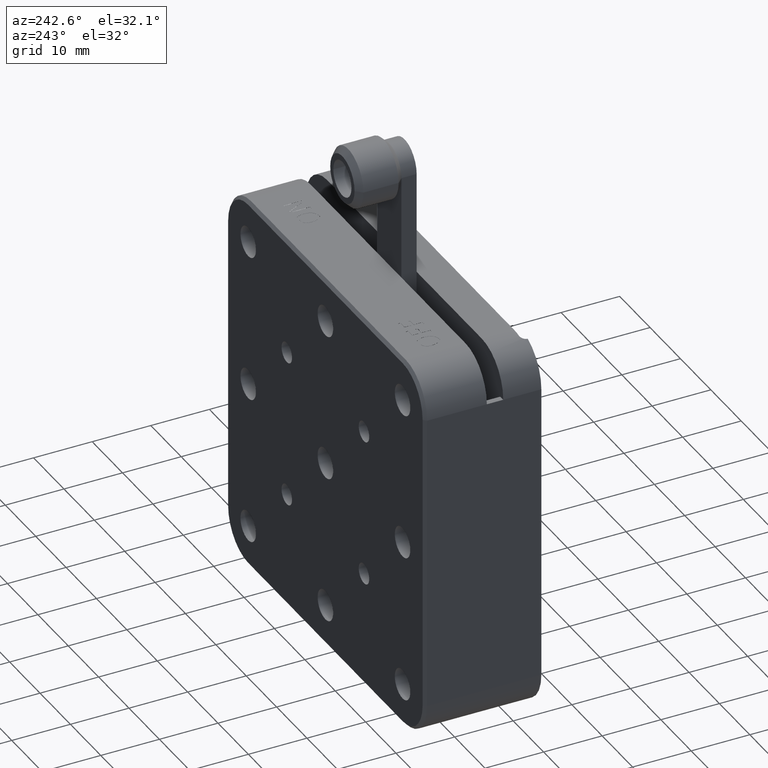
[diagram: clean part render]
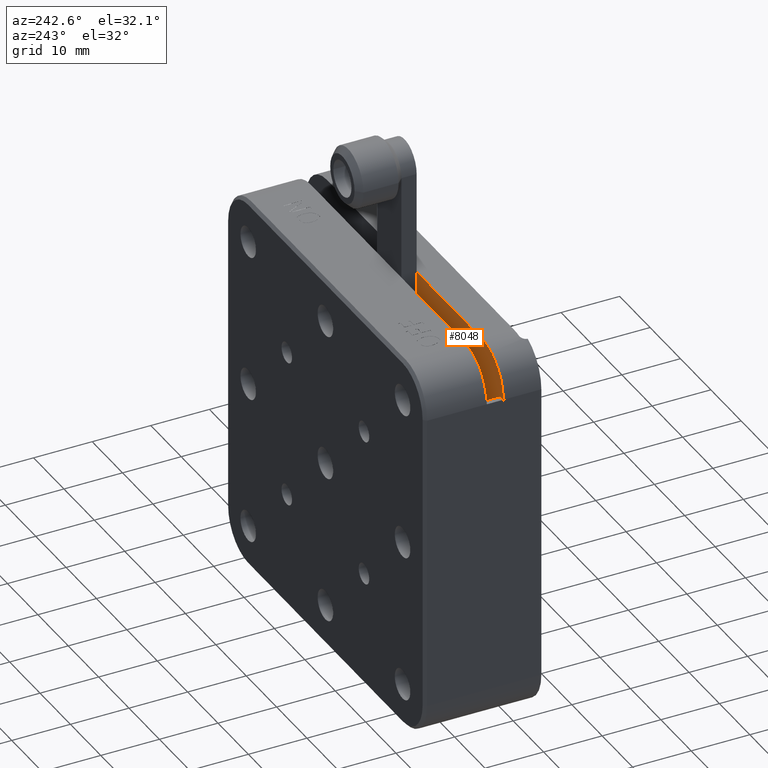
[diagram: same view with one face highlighted and labeled with its STEP entity id]
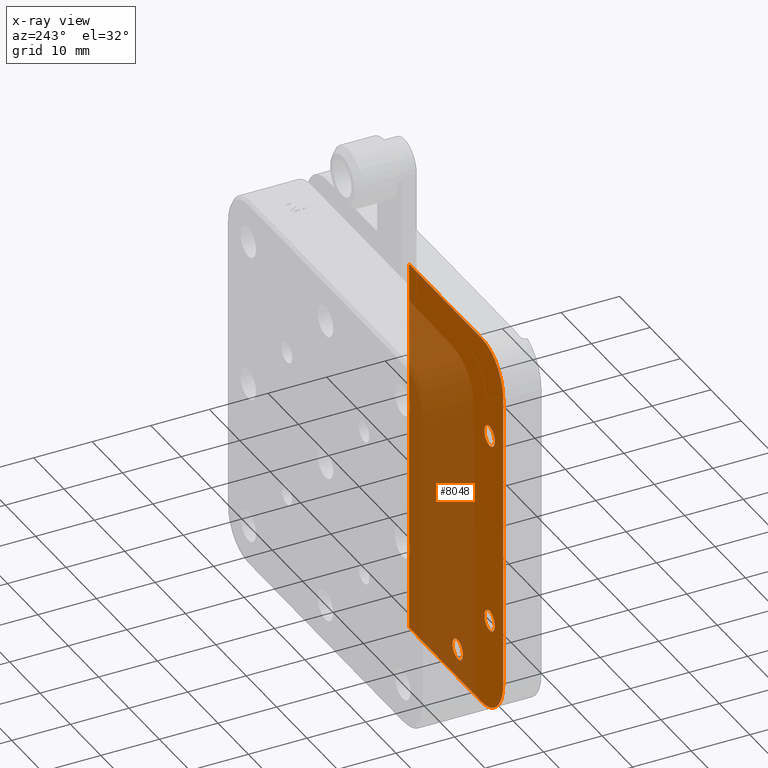
[diagram: x-ray of the same camera — body ghosted, the highlighted face saturated]
A machine part, auxiliary view. The second image highlights one B-rep face of the part: STEP entity #8048.
The next image is the same camera in x-ray: the body ghosted, the highlighted face saturated — about 63% of this face is hidden behind the body in this view.
In plain terms, the highlighted planar face has unit normal (-0, 1, -0).
Its self-contained STEP definition (entity closure, byte-faithful):
#56 = CARTESIAN_POINT ( 'NONE',  ( -28.00000000000001800, 3.000000000000008900, 14.79999999999997200 ) ) ;
#78 = ORIENTED_EDGE ( 'NONE', *, *, #2910, .T. ) ;
#96 = FACE_BOUND ( 'NONE', #3493, .T. ) ;
#160 = VERTEX_POINT ( 'NONE', #325 ) ;
#180 = EDGE_CURVE ( 'NONE', #5347, #6297, #6179, .T. ) ;
#265 = AXIS2_PLACEMENT_3D ( 'NONE', #3376, #4025, #4656 ) ;
#325 = CARTESIAN_POINT ( 'NONE',  ( -25.50000000000002100, 3.000000000000007100, 32.49999999999998600 ) ) ;
#356 = LINE ( 'NONE', #7627, #2393 ) ;
#392 = CIRCLE ( 'NONE', #265, 1.700000000000000200 ) ;
#411 = CARTESIAN_POINT ( 'NONE',  ( -28.00000000000001800, 3.000000000000009800, -16.49999999999997500 ) ) ;
#445 = VERTEX_POINT ( 'NONE', #56 ) ;
#482 = AXIS2_PLACEMENT_3D ( 'NONE', #6536, #3401, #7141 ) ;
#487 = VERTEX_POINT ( 'NONE', #6469 ) ;
#679 = DIRECTION ( 'NONE',  ( 0.0000000000000000000, 0.0000000000000000000, 1.000000000000000000 ) ) ;
#680 = DIRECTION ( 'NONE',  ( 1.734723475976804800E-018, -1.000000000000000000, -7.589415207398521400E-019 ) ) ;
#710 = DIRECTION ( 'NONE',  ( -2.058290061827948900E-019, -7.480994990149977500E-018, -1.000000000000000000 ) ) ;
#1145 = EDGE_CURVE ( 'NONE', #7671, #6416, #6154, .T. ) ;
#1160 = CARTESIAN_POINT ( 'NONE',  ( -28.00000000000001800, 3.000000000000008900, 16.49999999999997200 ) ) ;
#1296 = ORIENTED_EDGE ( 'NONE', *, *, #1145, .T. ) ;
#1306 = CIRCLE ( 'NONE', #5388, 1.700000000000000200 ) ;
#1425 = DIRECTION ( 'NONE',  ( 1.000000000000000000, 8.673617379884027800E-018, 5.090668012998340200E-019 ) ) ;
#1427 = VECTOR ( 'NONE', #710, 1000.000000000000000 ) ;
#1550 = CARTESIAN_POINT ( 'NONE',  ( -28.00000000000001800, 3.000000000000009800, -16.49999999999997500 ) ) ;
#1690 = CARTESIAN_POINT ( 'NONE',  ( -1.499999999999978700, 3.000000000000009300, 32.50000000000000000 ) ) ;
#1745 = DIRECTION ( 'NONE',  ( 2.058290061827948900E-019, 7.480994990149977500E-018, 1.000000000000000000 ) ) ;
#1788 = LINE ( 'NONE', #4814, #3382 ) ;
#1914 = CARTESIAN_POINT ( 'NONE',  ( -17.50000000000000000, 3.000000000000008400, -29.19999999999998200 ) ) ;
#1982 = EDGE_CURVE ( 'NONE', #487, #5282, #4395, .T. ) ;
#2159 = CARTESIAN_POINT ( 'NONE',  ( -28.00000000000001800, 3.000000000000009800, -18.19999999999997800 ) ) ;
#2300 = DIRECTION ( 'NONE',  ( -1.734723475976804800E-018, 1.000000000000000000, -7.480994990149977500E-018 ) ) ;
#2393 = VECTOR ( 'NONE', #2550, 1000.000000000000000 ) ;
#2550 = DIRECTION ( 'NONE',  ( 1.000000000000000000, 8.673617379884027800E-018, 5.090668012998340200E-019 ) ) ;
#2597 = DIRECTION ( 'NONE',  ( 0.0000000000000000000, 0.0000000000000000000, -1.000000000000000000 ) ) ;
#2910 = EDGE_CURVE ( 'NONE', #6297, #160, #8114, .T. ) ;
#2920 = AXIS2_PLACEMENT_3D ( 'NONE', #411, #8076, #5501 ) ;
#2928 = DIRECTION ( 'NONE',  ( -1.734723475976804800E-018, 1.000000000000000000, -5.963111948670266700E-018 ) ) ;
#2977 = PLANE ( 'NONE',  #7452 ) ;
#3187 = DIRECTION ( 'NONE',  ( -1.734723475976804800E-018, 1.000000000000000000, -5.963111948670266700E-018 ) ) ;
#3246 = ORIENTED_EDGE ( 'NONE', *, *, #3365, .T. ) ;
#3296 = FACE_BOUND ( 'NONE', #8068, .T. ) ;
#3313 = EDGE_LOOP ( 'NONE', ( #5054, #78, #3502, #3786, #7696, #7101 ) ) ;
#3330 = LINE ( 'NONE', #5845, #1427 ) ;
#3365 = EDGE_CURVE ( 'NONE', #6416, #7671, #392, .T. ) ;
#3376 = CARTESIAN_POINT ( 'NONE',  ( -17.50000000000000000, 3.000000000000008400, -27.49999999999998200 ) ) ;
#3382 = VECTOR ( 'NONE', #1425, 1000.000000000000000 ) ;
#3401 = DIRECTION ( 'NONE',  ( 1.734723475976804800E-018, -1.000000000000000000, -7.589415207398521400E-019 ) ) ;
#3410 = CARTESIAN_POINT ( 'NONE',  ( -17.50000000000000000, 3.000000000000008400, -25.79999999999998300 ) ) ;
#3440 = CARTESIAN_POINT ( 'NONE',  ( -32.50000000000003600, 3.000000000000006200, -25.50000000000002500 ) ) ;
#3493 = EDGE_LOOP ( 'NONE', ( #3246, #1296 ) ) ;
#3502 = ORIENTED_EDGE ( 'NONE', *, *, #4048, .T. ) ;
#3527 = CIRCLE ( 'NONE', #482, 1.700000000000000200 ) ;
#3561 = DIRECTION ( 'NONE',  ( 2.058290061827948900E-019, 7.480994990149977500E-018, 1.000000000000000000 ) ) ;
#3633 = CARTESIAN_POINT ( 'NONE',  ( -32.50000000000004300, 3.000000000000007100, 32.49999999999999300 ) ) ;
#3732 = EDGE_CURVE ( 'NONE', #6580, #5347, #7797, .T. ) ;
#3786 = ORIENTED_EDGE ( 'NONE', *, *, #6688, .T. ) ;
#4025 = DIRECTION ( 'NONE',  ( 1.734723475976804800E-018, -1.000000000000000000, -7.589415207398521400E-019 ) ) ;
#4048 = EDGE_CURVE ( 'NONE', #160, #7139, #1788, .T. ) ;
#4085 = EDGE_CURVE ( 'NONE', #445, #4649, #7904, .T. ) ;
#4326 = EDGE_CURVE ( 'NONE', #6580, #8240, #356, .T. ) ;
#4395 = CIRCLE ( 'NONE', #2920, 1.700000000000000200 ) ;
#4430 = AXIS2_PLACEMENT_3D ( 'NONE', #7371, #2928, #7427 ) ;
#4588 = AXIS2_PLACEMENT_3D ( 'NONE', #6846, #680, #2597 ) ;
#4649 = VERTEX_POINT ( 'NONE', #4834 ) ;
#4656 = DIRECTION ( 'NONE',  ( 0.0000000000000000000, 0.0000000000000000000, -1.000000000000000000 ) ) ;
#4814 = CARTESIAN_POINT ( 'NONE',  ( -32.50000000000004300, 3.000000000000007100, 32.49999999999999300 ) ) ;
#4834 = CARTESIAN_POINT ( 'NONE',  ( -28.00000000000001800, 3.000000000000008900, 18.19999999999997400 ) ) ;
#5020 = CARTESIAN_POINT ( 'NONE',  ( -1.499999999999971800, 3.000000000000007500, -32.50000000000004300 ) ) ;
#5054 = ORIENTED_EDGE ( 'NONE', *, *, #180, .T. ) ;
#5282 = VERTEX_POINT ( 'NONE', #2159 ) ;
#5347 = VERTEX_POINT ( 'NONE', #3440 ) ;
#5388 = AXIS2_PLACEMENT_3D ( 'NONE', #1550, #5411, #5930 ) ;
#5411 = DIRECTION ( 'NONE',  ( 1.734723475976804800E-018, -1.000000000000000000, -7.589415207398521400E-019 ) ) ;
#5501 = DIRECTION ( 'NONE',  ( 0.0000000000000000000, 0.0000000000000000000, -1.000000000000000000 ) ) ;
#5604 = EDGE_CURVE ( 'NONE', #4649, #445, #3527, .T. ) ;
#5631 = DIRECTION ( 'NONE',  ( 0.0000000000000000000, 0.0000000000000000000, -1.000000000000000000 ) ) ;
#5806 = ORIENTED_EDGE ( 'NONE', *, *, #1982, .T. ) ;
#5845 = CARTESIAN_POINT ( 'NONE',  ( -1.499999999999971800, 3.000000000000006700, 32.99999999999999300 ) ) ;
#5930 = DIRECTION ( 'NONE',  ( 0.0000000000000000000, 0.0000000000000000000, -1.000000000000000000 ) ) ;
#6050 = ORIENTED_EDGE ( 'NONE', *, *, #5604, .T. ) ;
#6154 = CIRCLE ( 'NONE', #4588, 1.700000000000000200 ) ;
#6157 = AXIS2_PLACEMENT_3D ( 'NONE', #6281, #3187, #679 ) ;
#6179 = LINE ( 'NONE', #6731, #7158 ) ;
#6281 = CARTESIAN_POINT ( 'NONE',  ( -25.50000000000002100, 3.000000000000008000, 25.50000000000002800 ) ) ;
#6297 = VERTEX_POINT ( 'NONE', #7989 ) ;
#6329 = DIRECTION ( 'NONE',  ( 1.734723475976804800E-018, -1.000000000000000000, -7.589415207398521400E-019 ) ) ;
#6416 = VERTEX_POINT ( 'NONE', #1914 ) ;
#6469 = CARTESIAN_POINT ( 'NONE',  ( -28.00000000000001800, 3.000000000000009800, -14.79999999999997600 ) ) ;
#6536 = CARTESIAN_POINT ( 'NONE',  ( -28.00000000000001800, 3.000000000000008900, 16.49999999999997200 ) ) ;
#6580 = VERTEX_POINT ( 'NONE', #7105 ) ;
#6688 = EDGE_CURVE ( 'NONE', #7139, #8240, #3330, .T. ) ;
#6731 = CARTESIAN_POINT ( 'NONE',  ( -32.50000000000004300, 3.000000000000007100, 32.49999999999999300 ) ) ;
#6742 = FACE_BOUND ( 'NONE', #7185, .T. ) ;
#6846 = CARTESIAN_POINT ( 'NONE',  ( -17.50000000000000000, 3.000000000000008400, -27.49999999999998200 ) ) ;
#7101 = ORIENTED_EDGE ( 'NONE', *, *, #3732, .T. ) ;
#7105 = CARTESIAN_POINT ( 'NONE',  ( -25.50000000000001400, 3.000000000000006700, -32.50000000000004300 ) ) ;
#7139 = VERTEX_POINT ( 'NONE', #1690 ) ;
#7141 = DIRECTION ( 'NONE',  ( 0.0000000000000000000, 0.0000000000000000000, -1.000000000000000000 ) ) ;
#7158 = VECTOR ( 'NONE', #3561, 1000.000000000000000 ) ;
#7185 = EDGE_LOOP ( 'NONE', ( #8002, #5806 ) ) ;
#7328 = FACE_OUTER_BOUND ( 'NONE', #3313, .T. ) ;
#7371 = CARTESIAN_POINT ( 'NONE',  ( -25.50000000000002500, 3.000000000000006700, -25.50000000000002500 ) ) ;
#7427 = DIRECTION ( 'NONE',  ( 0.0000000000000000000, 0.0000000000000000000, 1.000000000000000000 ) ) ;
#7452 = AXIS2_PLACEMENT_3D ( 'NONE', #3633, #2300, #1745 ) ;
#7627 = CARTESIAN_POINT ( 'NONE',  ( -32.50000000000002800, 3.000000000000006700, -32.50000000000006400 ) ) ;
#7636 = EDGE_CURVE ( 'NONE', #5282, #487, #1306, .T. ) ;
#7671 = VERTEX_POINT ( 'NONE', #3410 ) ;
#7696 = ORIENTED_EDGE ( 'NONE', *, *, #4326, .F. ) ;
#7797 = CIRCLE ( 'NONE', #4430, 7.000000000000002700 ) ;
#7904 = CIRCLE ( 'NONE', #7905, 1.700000000000000200 ) ;
#7905 = AXIS2_PLACEMENT_3D ( 'NONE', #1160, #6329, #5631 ) ;
#7989 = CARTESIAN_POINT ( 'NONE',  ( -32.50000000000004300, 3.000000000000007100, 25.50000000000000700 ) ) ;
#8002 = ORIENTED_EDGE ( 'NONE', *, *, #7636, .T. ) ;
#8048 = ADVANCED_FACE ( 'NONE', ( #96, #3296, #6742, #7328 ), #2977, .T. ) ;
#8068 = EDGE_LOOP ( 'NONE', ( #8226, #6050 ) ) ;
#8076 = DIRECTION ( 'NONE',  ( 1.734723475976804800E-018, -1.000000000000000000, -7.589415207398521400E-019 ) ) ;
#8114 = CIRCLE ( 'NONE', #6157, 7.000000000000006200 ) ;
#8226 = ORIENTED_EDGE ( 'NONE', *, *, #4085, .T. ) ;
#8240 = VERTEX_POINT ( 'NONE', #5020 ) ;